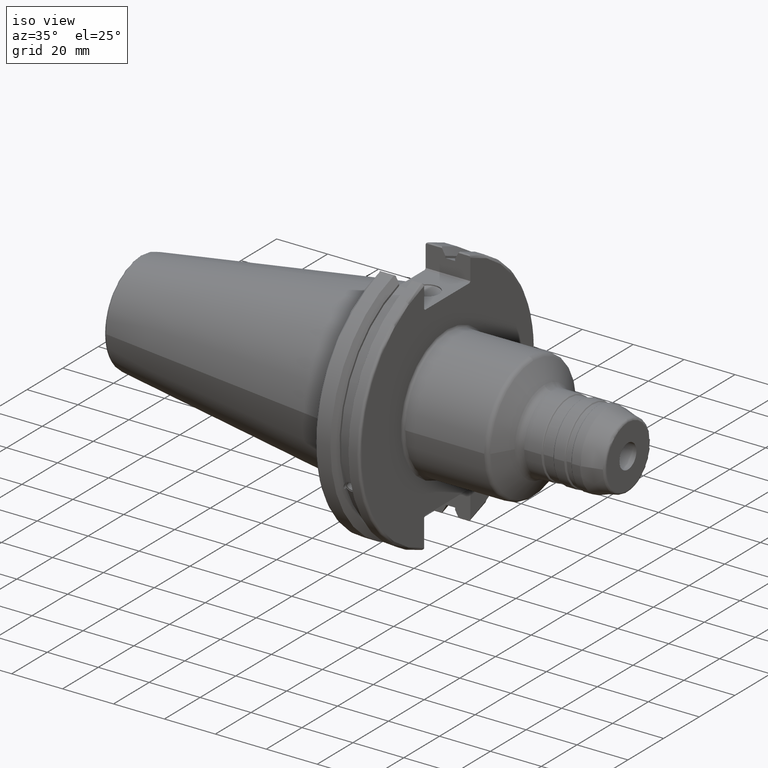
[diagram: clean part render]
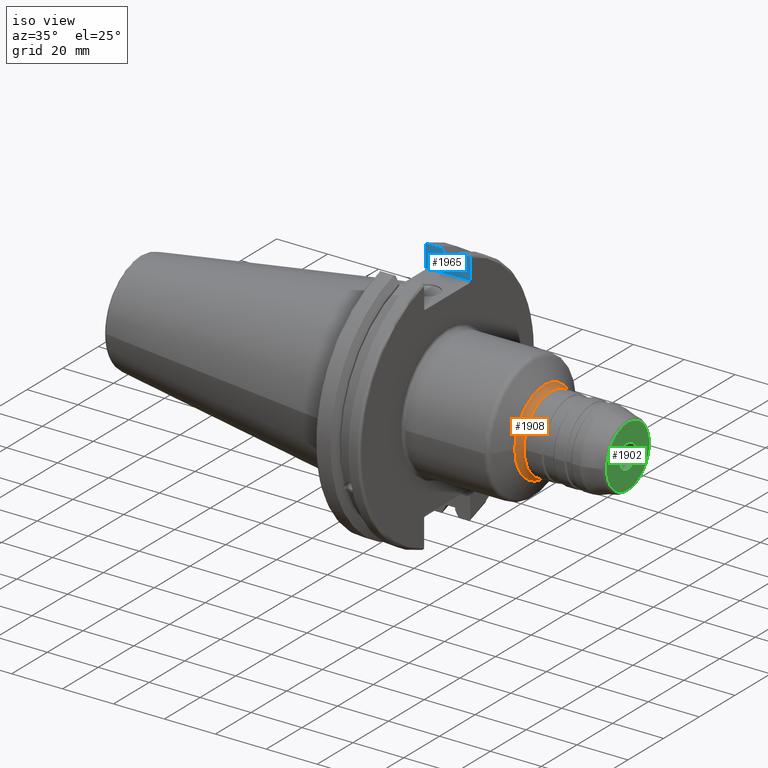
[diagram: same view with three faces highlighted in distinct colors, each labeled with its STEP entity id]
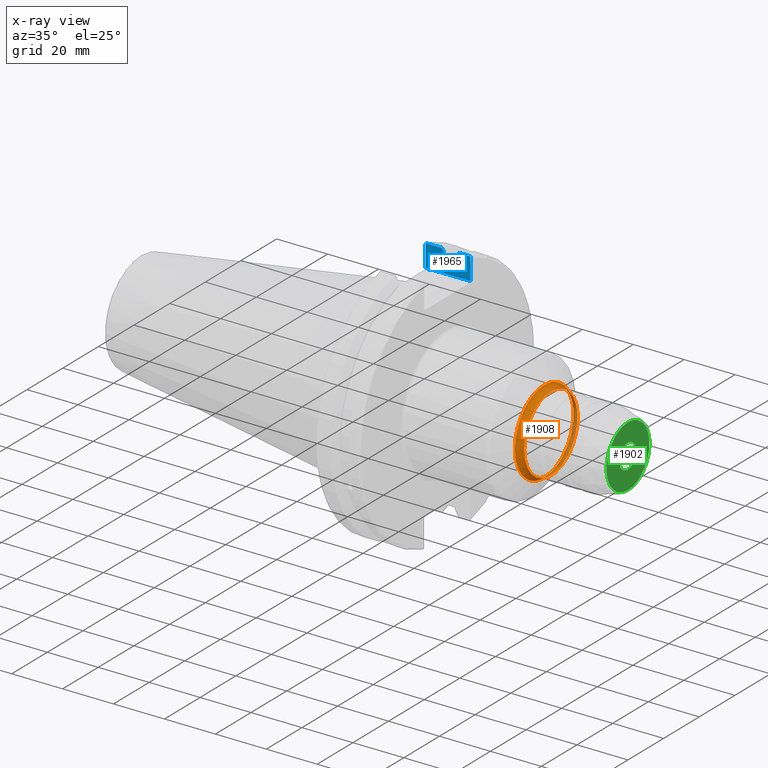
[diagram: x-ray of the same camera — body ghosted, the three highlighted faces saturated]
A machine part, iso view with three faces highlighted in distinct colors.
The next image is the same camera in x-ray (body ghosted, the three faces saturated) — at least one of them is partly hidden behind the body in this view.
Their STEP definitions:

[orange] entity #1908 — the highlighted toroidal blend (fillet) surface has major radius 18 mm and minor (blend) radius 3 mm.
#422=FACE_OUTER_BOUND('',#534,.T.);
#534=EDGE_LOOP('',(#1422,#1423,#1424,#1425,#1426,#1427));
#665=CIRCLE('',#2058,15.);
#666=CIRCLE('',#2059,15.);
#697=CIRCLE('',#2104,16.5);
#698=CIRCLE('',#2105,16.5);
#699=CIRCLE('',#2107,3.);
#793=VERTEX_POINT('',#2934);
#794=VERTEX_POINT('',#2936);
#828=VERTEX_POINT('',#3030);
#829=VERTEX_POINT('',#3031);
#1004=EDGE_CURVE('',#794,#793,#665,.T.);
#1005=EDGE_CURVE('',#793,#794,#666,.T.);
#1050=EDGE_CURVE('',#828,#829,#697,.T.);
#1052=EDGE_CURVE('',#829,#828,#698,.T.);
#1053=EDGE_CURVE('',#829,#794,#699,.T.);
#1422=ORIENTED_EDGE('',*,*,#1050,.T.);
#1423=ORIENTED_EDGE('',*,*,#1053,.T.);
#1424=ORIENTED_EDGE('',*,*,#1004,.T.);
#1425=ORIENTED_EDGE('',*,*,#1005,.T.);
#1426=ORIENTED_EDGE('',*,*,#1053,.F.);
#1427=ORIENTED_EDGE('',*,*,#1052,.T.);
#1875=TOROIDAL_SURFACE('',#2106,18.,3.);
#1908=ADVANCED_FACE('',(#422),#1875,.F.);
#2058=AXIS2_PLACEMENT_3D('',#2937,#2355,#2356);
#2059=AXIS2_PLACEMENT_3D('',#2938,#2357,#2358);
#2104=AXIS2_PLACEMENT_3D('',#3032,#2461,#2462);
#2105=AXIS2_PLACEMENT_3D('',#3034,#2464,#2465);
#2106=AXIS2_PLACEMENT_3D('',#3035,#2466,#2467);
#2107=AXIS2_PLACEMENT_3D('',#3036,#2468,#2469);
#2355=DIRECTION('center_axis',(-1.,0.,0.));
#2356=DIRECTION('ref_axis',(0.,-1.,1.83697019872103E-16));
#2357=DIRECTION('center_axis',(-1.,0.,0.));
#2358=DIRECTION('ref_axis',(0.,-1.,1.83697019872103E-16));
#2461=DIRECTION('center_axis',(1.,0.,0.));
#2462=DIRECTION('ref_axis',(0.,-1.,3.06161699786838E-17));
#2464=DIRECTION('center_axis',(1.,0.,0.));
#2465=DIRECTION('ref_axis',(0.,-1.,3.06161699786838E-17));
#2466=DIRECTION('center_axis',(1.,0.,0.));
#2467=DIRECTION('ref_axis',(0.,0.,-1.));
#2468=DIRECTION('center_axis',(0.,-1.,-1.22464679914735E-16));
#2469=DIRECTION('ref_axis',(0.,-1.22464679914735E-16,1.));
#2934=CARTESIAN_POINT('',(59.7320508075689,-15.,-1.83697019872103E-15));
#2936=CARTESIAN_POINT('',(59.7320508075689,-1.83697019872103E-15,15.));
#2937=CARTESIAN_POINT('Origin',(59.7320508075689,0.,0.));
#2938=CARTESIAN_POINT('Origin',(59.7320508075689,0.,0.));
#3030=CARTESIAN_POINT('',(57.1339745962156,-16.5,-2.02066721859313E-15));
#3031=CARTESIAN_POINT('',(57.1339745962156,-2.02066721859313E-15,16.5));
#3032=CARTESIAN_POINT('Origin',(57.1339745962156,0.,-2.52583402324142E-15));
#3034=CARTESIAN_POINT('Origin',(57.1339745962156,0.,-2.52583402324142E-15));
#3035=CARTESIAN_POINT('Origin',(59.7320508075689,0.,0.));
#3036=CARTESIAN_POINT('Origin',(59.7320508075689,-2.20436423846524E-15,
18.));

[blue] entity #1965 — the highlighted planar face has unit normal (0, 1, 0).
#22=(
BOUNDED_CURVE()
B_SPLINE_CURVE(2,(#3583,#3584,#3585),.UNSPECIFIED.,.F.,.F.)
B_SPLINE_CURVE_WITH_KNOTS((3,3),(0.0558332664521729,0.331657177124506),
 .UNSPECIFIED.)
CURVE()
GEOMETRIC_REPRESENTATION_ITEM()
RATIONAL_B_SPLINE_CURVE((1.00012873636948,1.0003823557496,1.))
REPRESENTATION_ITEM('')
);
#31=(
BOUNDED_CURVE()
B_SPLINE_CURVE(2,(#3872,#3873,#3874),.UNSPECIFIED.,.F.,.F.)
B_SPLINE_CURVE_WITH_KNOTS((3,3),(0.,0.275823910675342),.UNSPECIFIED.)
CURVE()
GEOMETRIC_REPRESENTATION_ITEM()
RATIONAL_B_SPLINE_CURVE((1.,1.00038235575444,1.0001287363711))
REPRESENTATION_ITEM('')
);
#59=B_SPLINE_CURVE_WITH_KNOTS('',3,(#3619,#3620,#3621,#3622,#3623,#3624),
 .UNSPECIFIED.,.F.,.F.,(4,2,4),(0.0976892167532868,0.112000071948293,0.150881870548587),
 .UNSPECIFIED.);
#74=B_SPLINE_CURVE_WITH_KNOTS('',3,(#3809,#3810,#3811,#3812,#3813,#3814),
 .UNSPECIFIED.,.F.,.F.,(4,2,4),(0.452859340315923,0.491741138916218,0.506051994111224),
 .UNSPECIFIED.);
#119=PLANE('',#2216);
#162=LINE('',#3003,#268);
#229=LINE('',#3822,#335);
#240=LINE('',#3866,#346);
#242=LINE('',#3870,#348);
#243=LINE('',#3876,#349);
#244=LINE('',#3878,#350);
#245=LINE('',#3879,#351);
#246=LINE('',#3880,#352);
#268=VECTOR('',#2439,10.);
#335=VECTOR('',#2710,10.);
#346=VECTOR('',#2753,10.);
#348=VECTOR('',#2757,10.);
#349=VECTOR('',#2758,10.);
#350=VECTOR('',#2759,10.);
#351=VECTOR('',#2760,10.);
#352=VECTOR('',#2761,10.);
#479=FACE_OUTER_BOUND('',#604,.T.);
#604=EDGE_LOOP('',(#1739,#1740,#1741,#1742,#1743,#1744,#1745,#1746,#1747,
#1748,#1749,#1750));
#814=VERTEX_POINT('',#2999);
#816=VERTEX_POINT('',#3002);
#896=VERTEX_POINT('',#3578);
#897=VERTEX_POINT('',#3582);
#906=VERTEX_POINT('',#3618);
#934=VERTEX_POINT('',#3787);
#937=VERTEX_POINT('',#3807);
#940=VERTEX_POINT('',#3820);
#952=VERTEX_POINT('',#3869);
#953=VERTEX_POINT('',#3871);
#954=VERTEX_POINT('',#3875);
#955=VERTEX_POINT('',#3877);
#1036=EDGE_CURVE('',#814,#816,#162,.T.);
#1143=EDGE_CURVE('',#896,#897,#22,.T.);
#1159=EDGE_CURVE('',#906,#814,#59,.T.);
#1205=EDGE_CURVE('',#937,#934,#74,.T.);
#1209=EDGE_CURVE('',#940,#937,#229,.T.);
#1229=EDGE_CURVE('',#816,#940,#240,.T.);
#1231=EDGE_CURVE('',#952,#906,#242,.T.);
#1232=EDGE_CURVE('',#953,#952,#31,.T.);
#1233=EDGE_CURVE('',#954,#953,#243,.T.);
#1234=EDGE_CURVE('',#955,#954,#244,.T.);
#1235=EDGE_CURVE('',#897,#955,#245,.T.);
#1236=EDGE_CURVE('',#934,#896,#246,.T.);
#1739=ORIENTED_EDGE('',*,*,#1159,.F.);
#1740=ORIENTED_EDGE('',*,*,#1231,.F.);
#1741=ORIENTED_EDGE('',*,*,#1232,.F.);
#1742=ORIENTED_EDGE('',*,*,#1233,.F.);
#1743=ORIENTED_EDGE('',*,*,#1234,.F.);
#1744=ORIENTED_EDGE('',*,*,#1235,.F.);
#1745=ORIENTED_EDGE('',*,*,#1143,.F.);
#1746=ORIENTED_EDGE('',*,*,#1236,.F.);
#1747=ORIENTED_EDGE('',*,*,#1205,.F.);
#1748=ORIENTED_EDGE('',*,*,#1209,.F.);
#1749=ORIENTED_EDGE('',*,*,#1229,.F.);
#1750=ORIENTED_EDGE('',*,*,#1036,.F.);
#1965=ADVANCED_FACE('',(#479),#119,.F.);
#2216=AXIS2_PLACEMENT_3D('',#3868,#2755,#2756);
#2439=DIRECTION('',(0.,0.,-1.));
#2710=DIRECTION('',(0.,0.,1.));
#2753=DIRECTION('',(-1.,0.,0.));
#2755=DIRECTION('center_axis',(0.,1.,0.));
#2756=DIRECTION('ref_axis',(-1.,0.,0.));
#2757=DIRECTION('',(1.,0.,0.));
#2758=DIRECTION('',(0.,0.,1.));
#2759=DIRECTION('',(1.,0.,0.));
#2760=DIRECTION('',(0.,0.,-1.));
#2761=DIRECTION('',(1.,0.,0.));
#2999=CARTESIAN_POINT('',(19.05,12.95,46.4407434937254));
#3002=CARTESIAN_POINT('',(19.05,12.95,38.219));
#3003=CARTESIAN_POINT('',(19.05,12.95,18.8595));
#3578=CARTESIAN_POINT('',(7.88638960562425,12.95,46.9780755322918));
#3582=CARTESIAN_POINT('',(9.2191,12.95,44.5791147973604));
#3583=CARTESIAN_POINT('Ctrl Pts',(7.88638960562425,12.95,46.9780755322917));
#3584=CARTESIAN_POINT('Ctrl Pts',(8.57020449052122,12.95,45.749496680282));
#3585=CARTESIAN_POINT('Ctrl Pts',(9.2191,12.95,44.5791147973604));
#3618=CARTESIAN_POINT('',(18.9055020570566,12.95,46.9780755322918));
#3619=CARTESIAN_POINT('Ctrl Pts',(18.9055020570566,12.95,46.9780755322918));
#3620=CARTESIAN_POINT('Ctrl Pts',(18.9315844351616,12.95,46.9333752207329));
#3621=CARTESIAN_POINT('Ctrl Pts',(18.9538432708766,12.95,46.887363294568));
#3622=CARTESIAN_POINT('Ctrl Pts',(19.0204646992875,12.95,46.7230464903732));
#3623=CARTESIAN_POINT('Ctrl Pts',(19.05,12.95,46.5703494890597));
#3624=CARTESIAN_POINT('Ctrl Pts',(19.05,12.95,46.4407434937254));
#3787=CARTESIAN_POINT('',(1.64449794294344,12.95,46.9780755322918));
#3807=CARTESIAN_POINT('',(1.5,12.95,46.4407434937254));
#3809=CARTESIAN_POINT('Ctrl Pts',(1.5,12.95,46.4407434937254));
#3810=CARTESIAN_POINT('Ctrl Pts',(1.5,12.95,46.5703494890597));
#3811=CARTESIAN_POINT('Ctrl Pts',(1.52953530071253,12.95,46.7230464903732));
#3812=CARTESIAN_POINT('Ctrl Pts',(1.59615672912336,12.95,46.887363294568));
#3813=CARTESIAN_POINT('Ctrl Pts',(1.61841556483839,12.95,46.9333752207329));
#3814=CARTESIAN_POINT('Ctrl Pts',(1.64449794294344,12.95,46.9780755322918));
#3820=CARTESIAN_POINT('',(1.5,12.95,38.219));
#3822=CARTESIAN_POINT('',(1.5,12.95,18.8595));
#3866=CARTESIAN_POINT('',(18.65,12.95,38.219));
#3868=CARTESIAN_POINT('Origin',(20.05,12.95,37.719));
#3869=CARTESIAN_POINT('',(14.3818103943757,12.95,46.9780755322918));
#3870=CARTESIAN_POINT('',(16.8551045170244,12.95,46.9780755322918));
#3871=CARTESIAN_POINT('',(13.0491,12.95,44.5791147973605));
#3872=CARTESIAN_POINT('Ctrl Pts',(13.0491,12.95,44.5791147973605));
#3873=CARTESIAN_POINT('Ctrl Pts',(13.6979955094449,12.95,45.749496680221));
#3874=CARTESIAN_POINT('Ctrl Pts',(14.3818103943757,12.95,46.9780755322918));
#3875=CARTESIAN_POINT('',(13.0491,12.95,43.7678716897452));
#3876=CARTESIAN_POINT('',(13.0491,12.95,18.8595));
#3877=CARTESIAN_POINT('',(9.2191,12.95,43.7678716897452));
#3878=CARTESIAN_POINT('',(11.1341,12.95,43.7678716897452));
#3879=CARTESIAN_POINT('',(9.2191,12.95,18.8595));
#3880=CARTESIAN_POINT('',(4.55399548297564,12.95,46.9780755322918));

[green] entity #1902 — the highlighted planar face has unit normal (1, 0, 0).
#75=FACE_BOUND('',#527,.T.);
#93=PLANE('',#2086);
#416=FACE_OUTER_BOUND('',#526,.T.);
#526=EDGE_LOOP('',(#1384));
#527=EDGE_LOOP('',(#1385));
#683=CIRCLE('',#2084,12.032673012021);
#685=CIRCLE('',#2087,4.7625);
#807=VERTEX_POINT('',#2978);
#808=VERTEX_POINT('',#2982);
#1025=EDGE_CURVE('',#807,#807,#683,.T.);
#1027=EDGE_CURVE('',#808,#808,#685,.T.);
#1384=ORIENTED_EDGE('',*,*,#1025,.F.);
#1385=ORIENTED_EDGE('',*,*,#1027,.F.);
#1902=ADVANCED_FACE('',(#416,#75),#93,.T.);
#2084=AXIS2_PLACEMENT_3D('',#2979,#2410,#2411);
#2086=AXIS2_PLACEMENT_3D('',#2981,#2414,#2415);
#2087=AXIS2_PLACEMENT_3D('',#2983,#2416,#2417);
#2410=DIRECTION('center_axis',(-1.,0.,0.));
#2411=DIRECTION('ref_axis',(0.,-1.,1.83697019872103E-16));
#2414=DIRECTION('center_axis',(1.,0.,0.));
#2415=DIRECTION('ref_axis',(0.,0.,-1.));
#2416=DIRECTION('center_axis',(1.,0.,0.));
#2417=DIRECTION('ref_axis',(0.,0.,-1.));
#2978=CARTESIAN_POINT('',(90.,-1.47357744893583E-15,12.032673012021));
#2979=CARTESIAN_POINT('Origin',(90.,0.,0.));
#2981=CARTESIAN_POINT('Origin',(90.,4.7625,0.));
#2982=CARTESIAN_POINT('',(90.,-4.7625,-5.83238038093926E-16));
#2983=CARTESIAN_POINT('Origin',(90.,0.,0.));